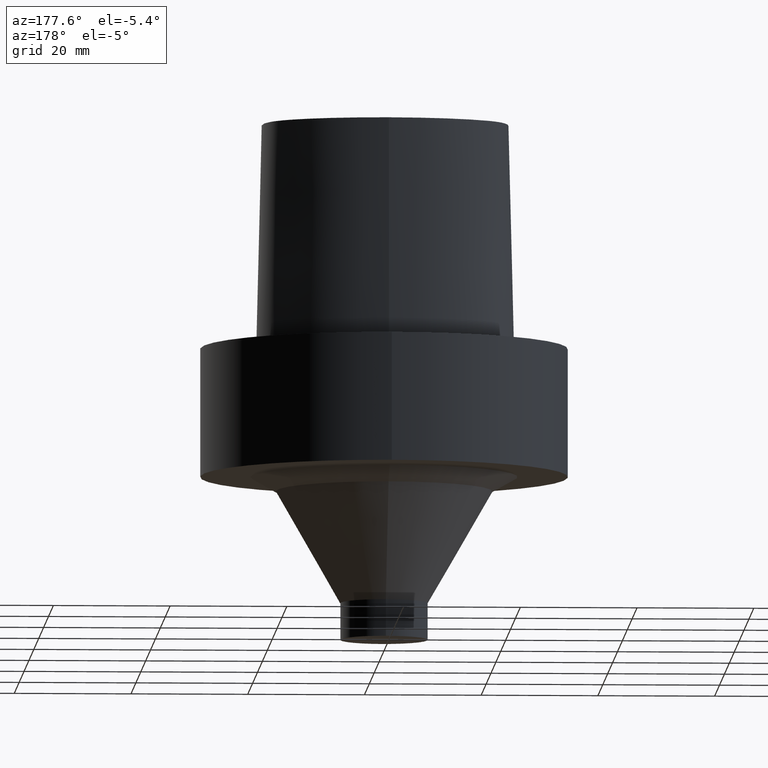
[diagram: clean part render]
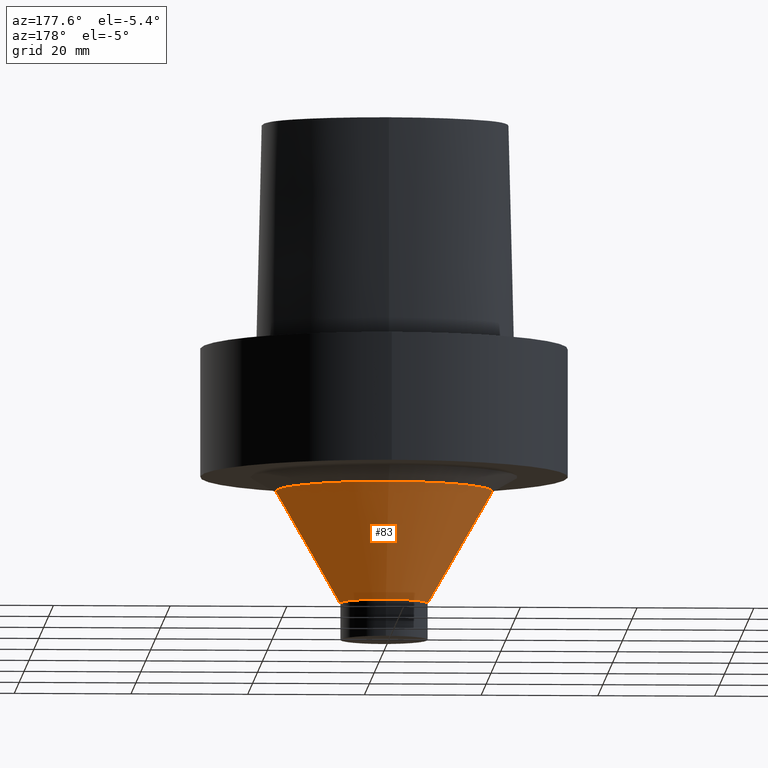
[diagram: same view with one face highlighted and labeled with its STEP entity id]
A machine part, auxiliary view. The second image highlights one B-rep face of the part: STEP entity #83.
In plain terms, the highlighted conical surface has half-angle 29.905 deg.
Its self-contained STEP definition (entity closure, byte-faithful):
#83=ADVANCED_FACE('',(#107,#108),#109,.T.);
#107=FACE_BOUND('',#273,.T.);
#108=FACE_BOUND('',#274,.T.);
#109=CONICAL_SURFACE('',#275,13.02659411,0.521942623520162);
#273=EDGE_LOOP('',(#322));
#274=EDGE_LOOP('',(#323));
#275=AXIS2_PLACEMENT_3D('',#324,#325,#326);
#322=ORIENTED_EDGE('',*,*,#348,.F.);
#323=ORIENTED_EDGE('',*,*,#347,.T.);
#324=CARTESIAN_POINT('',(2.08746810898524E-015,4.17493621797047E-015,-34.09094133));
#325=DIRECTION('',(-6.12323399573677E-017,-1.22464679914735E-016,1.0));
#326=DIRECTION('',(-1.23259516440783E-032,1.0,1.22464679914735E-016));
#347=EDGE_CURVE('',#369,#369,#370,.T.);
#348=EDGE_CURVE('',#371,#371,#372,.T.);
#369=VERTEX_POINT('',#460);
#370=CIRCLE('',#461,18.55318822);
#371=VERTEX_POINT('',#462);
#372=CIRCLE('',#463,7.5);
#460=CARTESIAN_POINT('',(1.4990829618335E-015,18.55318822,-24.48188266));
#461=AXIS2_PLACEMENT_3D('',#481,#482,#483);
#462=CARTESIAN_POINT('',(2.67585325613697E-015,7.50000000000001,-43.7));
#463=AXIS2_PLACEMENT_3D('',#484,#485,#486);
#481=CARTESIAN_POINT('',(1.4990829618335E-015,2.99816592366701E-015,-24.48188266));
#482=DIRECTION('',(6.12323399573677E-017,1.22464679914735E-016,-1.0));
#483=DIRECTION('',(-1.23259516440783E-032,1.0,1.22464679914735E-016));
#484=CARTESIAN_POINT('',(2.67585325613697E-015,5.35170651227393E-015,-43.7));
#485=DIRECTION('',(6.12323399573677E-017,1.22464679914735E-016,-1.0));
#486=DIRECTION('',(-1.23259516440783E-032,1.0,1.22464679914735E-016));